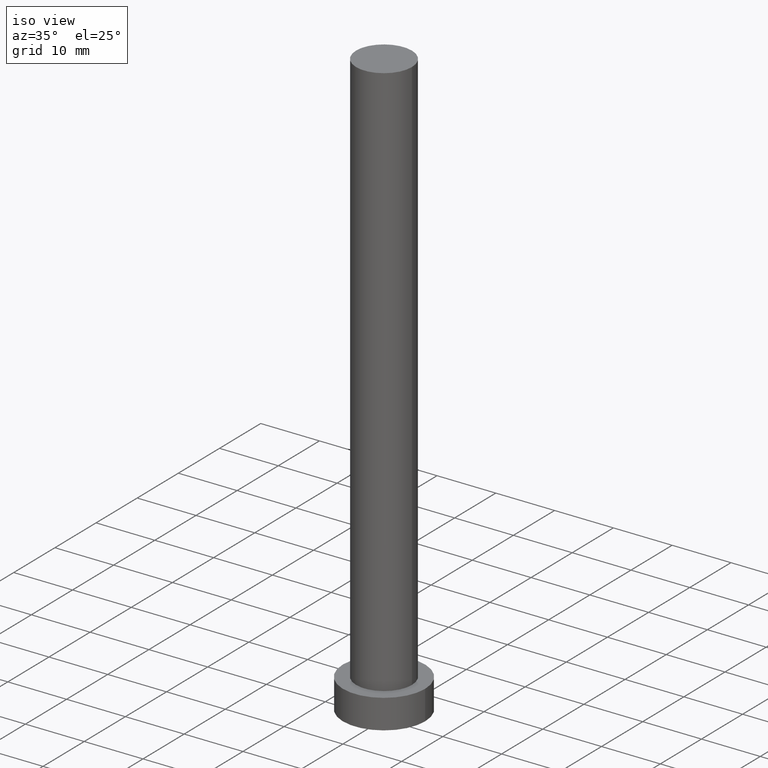
[diagram: clean part render]
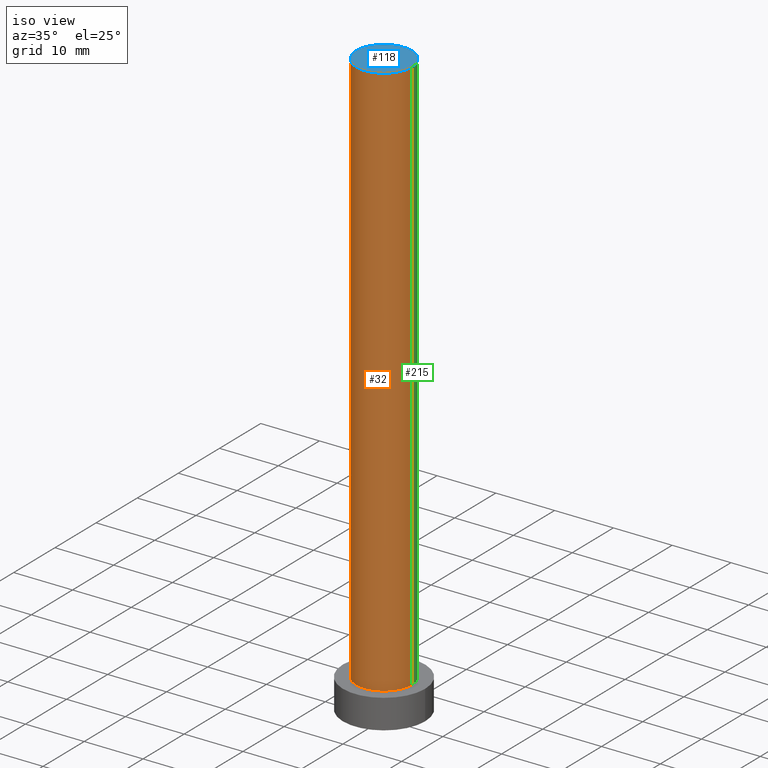
[diagram: same view with three faces highlighted in distinct colors, each labeled with its STEP entity id]
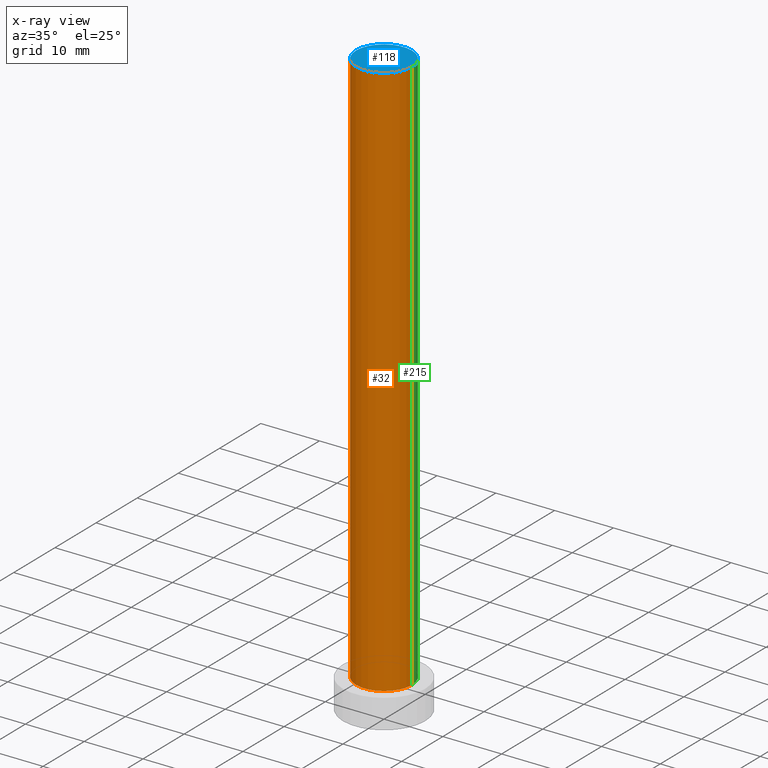
[diagram: x-ray of the same camera — body ghosted, the three highlighted faces saturated]
A machine part, iso view with three faces highlighted in distinct colors.
The next image is the same camera in x-ray (body ghosted, the three faces saturated) — at least one of them is partly hidden behind the body in this view.
Their STEP definitions:

[orange] entity #32 — the highlighted cylindrical surface (edge-blend (fillet) strip) has radius 4.75 mm, axis along (-0, -0, -1).
#5 = CIRCLE ( 'NONE', #33, 4.750000000000000888 ) ;
#14 = EDGE_LOOP ( 'NONE', ( #89, #238, #57, #93 ) ) ;
#22 = LINE ( 'NONE', #99, #240 ) ;
#24 = EDGE_CURVE ( 'NONE', #202, #146, #55, .T. ) ;
#32 = ADVANCED_FACE ( 'NONE', ( #164 ), #220, .T. ) ;
#33 = AXIS2_PLACEMENT_3D ( 'NONE', #251, #82, #98 ) ;
#34 = VERTEX_POINT ( 'NONE', #207 ) ;
#43 = CARTESIAN_POINT ( 'NONE',  ( -4.750000000000000888, 0.000000000000000000, 100.0000000000000000 ) ) ;
#55 = LINE ( 'NONE', #150, #213 ) ;
#57 = ORIENTED_EDGE ( 'NONE', *, *, #24, .T. ) ;
#58 = DIRECTION ( 'NONE',  ( -0.000000000000000000, -0.000000000000000000, -1.000000000000000000 ) ) ;
#69 = VERTEX_POINT ( 'NONE', #243 ) ;
#82 = DIRECTION ( 'NONE',  ( 0.000000000000000000, 0.000000000000000000, 1.000000000000000000 ) ) ;
#87 = CIRCLE ( 'NONE', #110, 4.750000000000000888 ) ;
#89 = ORIENTED_EDGE ( 'NONE', *, *, #148, .F. ) ;
#93 = ORIENTED_EDGE ( 'NONE', *, *, #102, .T. ) ;
#98 = DIRECTION ( 'NONE',  ( 1.000000000000000000, 0.000000000000000000, 0.000000000000000000 ) ) ;
#99 = CARTESIAN_POINT ( 'NONE',  ( 4.750000000000000888, 5.817072295949928412E-16, 100.0000000000000000 ) ) ;
#102 = EDGE_CURVE ( 'NONE', #146, #69, #87, .T. ) ;
#108 = DIRECTION ( 'NONE',  ( -0.000000000000000000, -0.000000000000000000, -1.000000000000000000 ) ) ;
#110 = AXIS2_PLACEMENT_3D ( 'NONE', #169, #222, #203 ) ;
#140 = DIRECTION ( 'NONE',  ( -0.000000000000000000, -0.000000000000000000, -1.000000000000000000 ) ) ;
#146 = VERTEX_POINT ( 'NONE', #174 ) ;
#148 = EDGE_CURVE ( 'NONE', #34, #69, #22, .T. ) ;
#150 = CARTESIAN_POINT ( 'NONE',  ( -4.750000000000000888, 0.000000000000000000, 100.0000000000000000 ) ) ;
#154 = CARTESIAN_POINT ( 'NONE',  ( 0.000000000000000000, 0.000000000000000000, 100.0000000000000000 ) ) ;
#164 = FACE_OUTER_BOUND ( 'NONE', #14, .T. ) ;
#165 = DIRECTION ( 'NONE',  ( -1.000000000000000000, 0.000000000000000000, 0.000000000000000000 ) ) ;
#169 = CARTESIAN_POINT ( 'NONE',  ( 0.000000000000000000, 0.000000000000000000, 5.000000000000000000 ) ) ;
#174 = CARTESIAN_POINT ( 'NONE',  ( -4.750000000000000888, 0.000000000000000000, 5.000000000000000000 ) ) ;
#195 = AXIS2_PLACEMENT_3D ( 'NONE', #154, #108, #165 ) ;
#202 = VERTEX_POINT ( 'NONE', #43 ) ;
#203 = DIRECTION ( 'NONE',  ( 1.000000000000000000, 0.000000000000000000, 0.000000000000000000 ) ) ;
#207 = CARTESIAN_POINT ( 'NONE',  ( 4.750000000000000888, 5.817072295949928412E-16, 100.0000000000000000 ) ) ;
#213 = VECTOR ( 'NONE', #58, 1000.000000000000000 ) ;
#216 = EDGE_CURVE ( 'NONE', #202, #34, #5, .T. ) ;
#220 = CYLINDRICAL_SURFACE ( 'NONE', #195, 4.750000000000000888 ) ;
#222 = DIRECTION ( 'NONE',  ( 0.000000000000000000, 0.000000000000000000, 1.000000000000000000 ) ) ;
#238 = ORIENTED_EDGE ( 'NONE', *, *, #216, .F. ) ;
#240 = VECTOR ( 'NONE', #140, 1000.000000000000000 ) ;
#243 = CARTESIAN_POINT ( 'NONE',  ( 4.750000000000000888, 5.817072295949928412E-16, 5.000000000000000000 ) ) ;
#251 = CARTESIAN_POINT ( 'NONE',  ( 0.000000000000000000, 0.000000000000000000, 100.0000000000000000 ) ) ;

[blue] entity #118 — the highlighted planar face has unit normal (0, 0, 1).
#5 = CIRCLE ( 'NONE', #33, 4.750000000000000888 ) ;
#9 = ORIENTED_EDGE ( 'NONE', *, *, #56, .T. ) ;
#11 = PLANE ( 'NONE',  #23 ) ;
#23 = AXIS2_PLACEMENT_3D ( 'NONE', #167, #76, #191 ) ;
#33 = AXIS2_PLACEMENT_3D ( 'NONE', #251, #82, #98 ) ;
#34 = VERTEX_POINT ( 'NONE', #207 ) ;
#36 = FACE_OUTER_BOUND ( 'NONE', #90, .T. ) ;
#43 = CARTESIAN_POINT ( 'NONE',  ( -4.750000000000000888, 0.000000000000000000, 100.0000000000000000 ) ) ;
#48 = AXIS2_PLACEMENT_3D ( 'NONE', #112, #130, #228 ) ;
#56 = EDGE_CURVE ( 'NONE', #34, #202, #239, .T. ) ;
#76 = DIRECTION ( 'NONE',  ( 0.000000000000000000, 0.000000000000000000, 1.000000000000000000 ) ) ;
#82 = DIRECTION ( 'NONE',  ( 0.000000000000000000, 0.000000000000000000, 1.000000000000000000 ) ) ;
#90 = EDGE_LOOP ( 'NONE', ( #201, #9 ) ) ;
#98 = DIRECTION ( 'NONE',  ( 1.000000000000000000, 0.000000000000000000, 0.000000000000000000 ) ) ;
#112 = CARTESIAN_POINT ( 'NONE',  ( 0.000000000000000000, 0.000000000000000000, 100.0000000000000000 ) ) ;
#118 = ADVANCED_FACE ( 'NONE', ( #36 ), #11, .T. ) ;
#130 = DIRECTION ( 'NONE',  ( 0.000000000000000000, 0.000000000000000000, 1.000000000000000000 ) ) ;
#167 = CARTESIAN_POINT ( 'NONE',  ( 0.000000000000000000, 0.000000000000000000, 100.0000000000000000 ) ) ;
#191 = DIRECTION ( 'NONE',  ( 1.000000000000000000, 0.000000000000000000, -0.000000000000000000 ) ) ;
#201 = ORIENTED_EDGE ( 'NONE', *, *, #216, .T. ) ;
#202 = VERTEX_POINT ( 'NONE', #43 ) ;
#207 = CARTESIAN_POINT ( 'NONE',  ( 4.750000000000000888, 5.817072295949928412E-16, 100.0000000000000000 ) ) ;
#216 = EDGE_CURVE ( 'NONE', #202, #34, #5, .T. ) ;
#228 = DIRECTION ( 'NONE',  ( 1.000000000000000000, 0.000000000000000000, 0.000000000000000000 ) ) ;
#239 = CIRCLE ( 'NONE', #48, 4.750000000000000888 ) ;
#251 = CARTESIAN_POINT ( 'NONE',  ( 0.000000000000000000, 0.000000000000000000, 100.0000000000000000 ) ) ;

[green] entity #215 — the highlighted cylindrical surface (edge-blend (fillet) strip) has radius 4.75 mm, axis along (-0, -0, -1).
#21 = DIRECTION ( 'NONE',  ( -0.000000000000000000, -0.000000000000000000, -1.000000000000000000 ) ) ;
#22 = LINE ( 'NONE', #99, #240 ) ;
#24 = EDGE_CURVE ( 'NONE', #202, #146, #55, .T. ) ;
#34 = VERTEX_POINT ( 'NONE', #207 ) ;
#37 = AXIS2_PLACEMENT_3D ( 'NONE', #159, #231, #65 ) ;
#43 = CARTESIAN_POINT ( 'NONE',  ( -4.750000000000000888, 0.000000000000000000, 100.0000000000000000 ) ) ;
#48 = AXIS2_PLACEMENT_3D ( 'NONE', #112, #130, #228 ) ;
#53 = ORIENTED_EDGE ( 'NONE', *, *, #24, .F. ) ;
#55 = LINE ( 'NONE', #150, #213 ) ;
#56 = EDGE_CURVE ( 'NONE', #34, #202, #239, .T. ) ;
#58 = DIRECTION ( 'NONE',  ( -0.000000000000000000, -0.000000000000000000, -1.000000000000000000 ) ) ;
#64 = CYLINDRICAL_SURFACE ( 'NONE', #144, 4.750000000000000888 ) ;
#65 = DIRECTION ( 'NONE',  ( 1.000000000000000000, 0.000000000000000000, 0.000000000000000000 ) ) ;
#69 = VERTEX_POINT ( 'NONE', #243 ) ;
#73 = ORIENTED_EDGE ( 'NONE', *, *, #56, .F. ) ;
#80 = FACE_OUTER_BOUND ( 'NONE', #107, .T. ) ;
#96 = CIRCLE ( 'NONE', #37, 4.750000000000000888 ) ;
#99 = CARTESIAN_POINT ( 'NONE',  ( 4.750000000000000888, 5.817072295949928412E-16, 100.0000000000000000 ) ) ;
#107 = EDGE_LOOP ( 'NONE', ( #73, #182, #147, #53 ) ) ;
#112 = CARTESIAN_POINT ( 'NONE',  ( 0.000000000000000000, 0.000000000000000000, 100.0000000000000000 ) ) ;
#130 = DIRECTION ( 'NONE',  ( 0.000000000000000000, 0.000000000000000000, 1.000000000000000000 ) ) ;
#140 = DIRECTION ( 'NONE',  ( -0.000000000000000000, -0.000000000000000000, -1.000000000000000000 ) ) ;
#144 = AXIS2_PLACEMENT_3D ( 'NONE', #250, #21, #254 ) ;
#146 = VERTEX_POINT ( 'NONE', #174 ) ;
#147 = ORIENTED_EDGE ( 'NONE', *, *, #242, .T. ) ;
#148 = EDGE_CURVE ( 'NONE', #34, #69, #22, .T. ) ;
#150 = CARTESIAN_POINT ( 'NONE',  ( -4.750000000000000888, 0.000000000000000000, 100.0000000000000000 ) ) ;
#159 = CARTESIAN_POINT ( 'NONE',  ( 0.000000000000000000, 0.000000000000000000, 5.000000000000000000 ) ) ;
#174 = CARTESIAN_POINT ( 'NONE',  ( -4.750000000000000888, 0.000000000000000000, 5.000000000000000000 ) ) ;
#182 = ORIENTED_EDGE ( 'NONE', *, *, #148, .T. ) ;
#202 = VERTEX_POINT ( 'NONE', #43 ) ;
#207 = CARTESIAN_POINT ( 'NONE',  ( 4.750000000000000888, 5.817072295949928412E-16, 100.0000000000000000 ) ) ;
#213 = VECTOR ( 'NONE', #58, 1000.000000000000000 ) ;
#215 = ADVANCED_FACE ( 'NONE', ( #80 ), #64, .T. ) ;
#228 = DIRECTION ( 'NONE',  ( 1.000000000000000000, 0.000000000000000000, 0.000000000000000000 ) ) ;
#231 = DIRECTION ( 'NONE',  ( 0.000000000000000000, 0.000000000000000000, 1.000000000000000000 ) ) ;
#239 = CIRCLE ( 'NONE', #48, 4.750000000000000888 ) ;
#240 = VECTOR ( 'NONE', #140, 1000.000000000000000 ) ;
#242 = EDGE_CURVE ( 'NONE', #69, #146, #96, .T. ) ;
#243 = CARTESIAN_POINT ( 'NONE',  ( 4.750000000000000888, 5.817072295949928412E-16, 5.000000000000000000 ) ) ;
#250 = CARTESIAN_POINT ( 'NONE',  ( 0.000000000000000000, 0.000000000000000000, 100.0000000000000000 ) ) ;
#254 = DIRECTION ( 'NONE',  ( -1.000000000000000000, 0.000000000000000000, 0.000000000000000000 ) ) ;